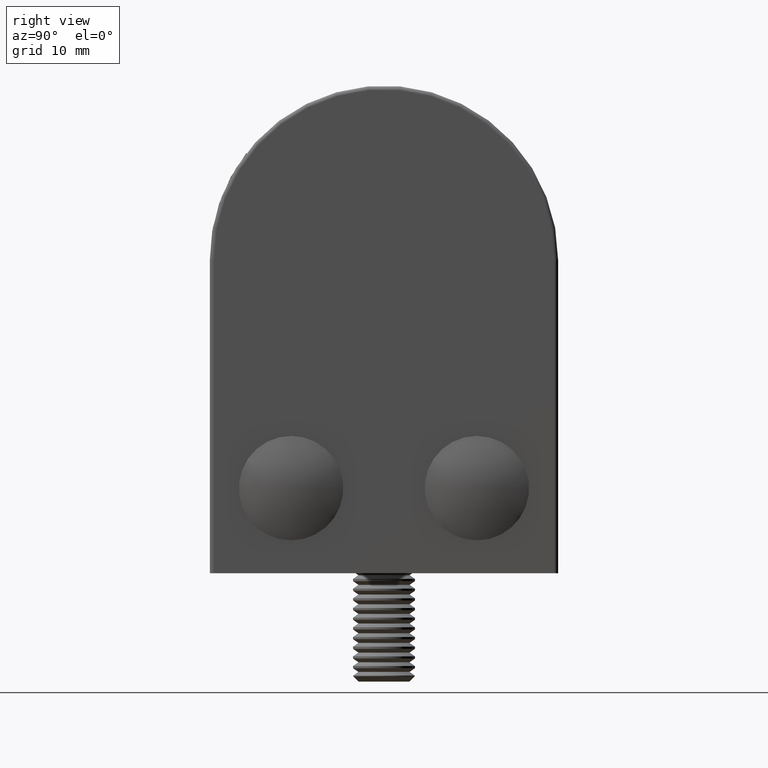
[diagram: clean part render]
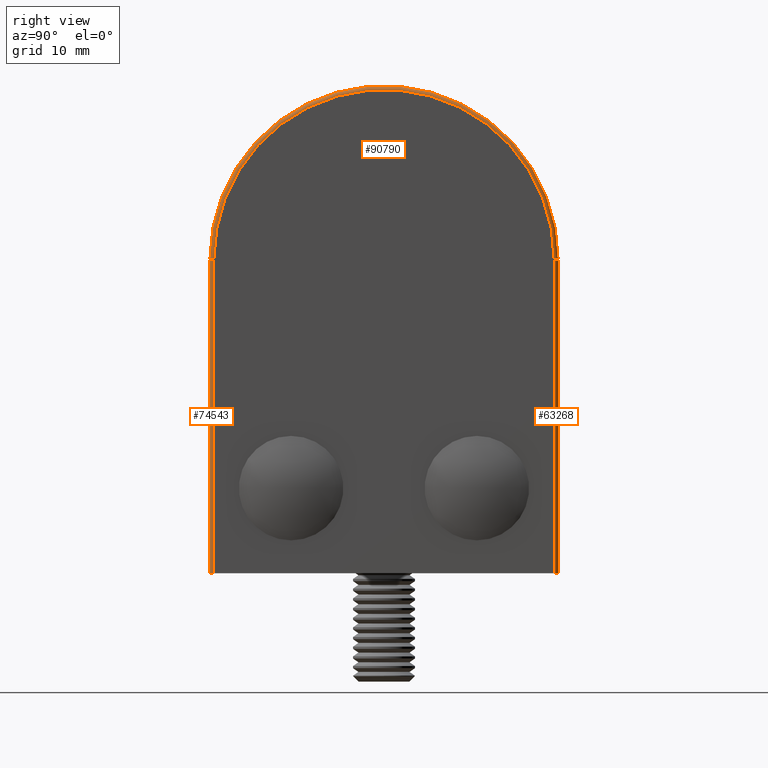
[diagram: same view with one multi-face feature highlighted, each face labeled with its STEP entity id]
A machine part, right view. The highlighted faces form ONE feature: a constant-radius fillet chain: 3 tangent blend faces with common blend radius 0.5 mm. The faces share edges in the B-rep.
Their STEP definitions:
[1] entity #90790 (Torus):
#5757 = CARTESIAN_POINT ( 'NONE',  ( 0.5000000000000004441, -22.50000000000001776, 40.50000000000000000 ) ) ;
#7394 = ORIENTED_EDGE ( 'NONE', *, *, #79811, .F. ) ;
#9201 = CIRCLE ( 'NONE', #23275, 0.5000000000000000000 ) ;
#10535 = CIRCLE ( 'NONE', #36328, 0.5000000000000000000 ) ;
#10913 = AXIS2_PLACEMENT_3D ( 'NONE', #41236, #55755, #13427 ) ;
#13427 = DIRECTION ( 'NONE',  ( 0.000000000000000000, 8.881784197001252323E-16, -1.000000000000000000 ) ) ;
#19436 = DIRECTION ( 'NONE',  ( 1.000000000000000000, 0.000000000000000000, 0.000000000000000000 ) ) ;
#19964 = DIRECTION ( 'NONE',  ( -1.000000000000000000, 0.000000000000000000, 0.000000000000000000 ) ) ;
#23275 = AXIS2_PLACEMENT_3D ( 'NONE', #75758, #47726, #19964 ) ;
#23908 = VERTEX_POINT ( 'NONE', #86490 ) ;
#26776 = FACE_OUTER_BOUND ( 'NONE', #68170, .T. ) ;
#31458 = CIRCLE ( 'NONE', #61299, 22.50000000000000355 ) ;
#33171 = EDGE_CURVE ( 'NONE', #62609, #70749, #31458, .T. ) ;
#33319 = DIRECTION ( 'NONE',  ( 0.000000000000000000, 0.000000000000000000, -1.000000000000000000 ) ) ;
#34801 = CIRCLE ( 'NONE', #10913, 22.00000000000000355 ) ;
#36328 = AXIS2_PLACEMENT_3D ( 'NONE', #73445, #65777, #79923 ) ;
#39785 = ORIENTED_EDGE ( 'NONE', *, *, #45462, .T. ) ;
#41236 = CARTESIAN_POINT ( 'NONE',  ( 0.000000000000000000, -1.387778780781445676E-14, 40.49999999999999289 ) ) ;
#45462 = EDGE_CURVE ( 'NONE', #72926, #70749, #10535, .T. ) ;
#45551 = TOROIDAL_SURFACE ( 'NONE', #49636, 22.00000000000000355, 0.5000000000000000000 ) ;
#46258 = CARTESIAN_POINT ( 'NONE',  ( 0.5000000000000004441, 22.50000000000000711, 40.49999999999999289 ) ) ;
#47726 = DIRECTION ( 'NONE',  ( 0.000000000000000000, 0.000000000000000000, -1.000000000000000000 ) ) ;
#49636 = AXIS2_PLACEMENT_3D ( 'NONE', #57970, #51169, #65082 ) ;
#51169 = DIRECTION ( 'NONE',  ( 1.000000000000000000, 0.000000000000000000, 0.000000000000000000 ) ) ;
#55755 = DIRECTION ( 'NONE',  ( -1.000000000000000000, -0.000000000000000000, -0.000000000000000000 ) ) ;
#57970 = CARTESIAN_POINT ( 'NONE',  ( 0.5000000000000004441, -1.387778780781445676E-14, 40.49999999999999289 ) ) ;
#59873 = CARTESIAN_POINT ( 'NONE',  ( 0.5000000000000004441, -1.387778780781445676E-14, 40.49999999999999289 ) ) ;
#61299 = AXIS2_PLACEMENT_3D ( 'NONE', #59873, #19436, #33319 ) ;
#62609 = VERTEX_POINT ( 'NONE', #46258 ) ;
#64372 = EDGE_CURVE ( 'NONE', #72926, #23908, #34801, .T. ) ;
#65082 = DIRECTION ( 'NONE',  ( 0.000000000000000000, 0.000000000000000000, -1.000000000000000000 ) ) ;
#65777 = DIRECTION ( 'NONE',  ( 0.000000000000000000, 0.000000000000000000, 1.000000000000000000 ) ) ;
#68170 = EDGE_LOOP ( 'NONE', ( #39785, #83323, #7394, #91188 ) ) ;
#70749 = VERTEX_POINT ( 'NONE', #5757 ) ;
#72132 = CARTESIAN_POINT ( 'NONE',  ( 0.000000000000000000, -22.00000000000001776, 40.50000000000000000 ) ) ;
#72926 = VERTEX_POINT ( 'NONE', #72132 ) ;
#73445 = CARTESIAN_POINT ( 'NONE',  ( 0.5000000000000000000, -22.00000000000000000, 40.50000000000000000 ) ) ;
#75758 = CARTESIAN_POINT ( 'NONE',  ( 0.5000000000000000000, 21.99999999999998934, 40.49999999999999289 ) ) ;
#79811 = EDGE_CURVE ( 'NONE', #23908, #62609, #9201, .T. ) ;
#79923 = DIRECTION ( 'NONE',  ( 1.000000000000000000, 0.000000000000000000, 0.000000000000000000 ) ) ;
#83323 = ORIENTED_EDGE ( 'NONE', *, *, #33171, .F. ) ;
#86490 = CARTESIAN_POINT ( 'NONE',  ( 0.000000000000000000, 21.99999999999998934, 40.49999999999999289 ) ) ;
#90790 = ADVANCED_FACE ( 'NONE', ( #26776 ), #45551, .T. ) ;
#91188 = ORIENTED_EDGE ( 'NONE', *, *, #64372, .F. ) ;
[2] entity #74543 (Cylinder):
#1041 = CARTESIAN_POINT ( 'NONE',  ( 0.000000000000000000, 22.00000000000000711, 40.49999999999998579 ) ) ;
#1247 = EDGE_CURVE ( 'NONE', #17916, #28518, #64504, .T. ) ;
#1683 = DIRECTION ( 'NONE',  ( 1.000000000000000000, 0.000000000000000000, 0.000000000000000000 ) ) ;
#3560 = ORIENTED_EDGE ( 'NONE', *, *, #21546, .F. ) ;
#9201 = CIRCLE ( 'NONE', #23275, 0.5000000000000000000 ) ;
#10116 = CARTESIAN_POINT ( 'NONE',  ( 0.000000000000000000, 21.99999999999998579, 0.000000000000000000 ) ) ;
#17324 = ORIENTED_EDGE ( 'NONE', *, *, #79811, .T. ) ;
#17916 = VERTEX_POINT ( 'NONE', #10116 ) ;
#19964 = DIRECTION ( 'NONE',  ( -1.000000000000000000, 0.000000000000000000, 0.000000000000000000 ) ) ;
#21546 = EDGE_CURVE ( 'NONE', #23908, #17916, #59031, .T. ) ;
#23275 = AXIS2_PLACEMENT_3D ( 'NONE', #75758, #47726, #19964 ) ;
#23908 = VERTEX_POINT ( 'NONE', #86490 ) ;
#28518 = VERTEX_POINT ( 'NONE', #41632 ) ;
#28980 = AXIS2_PLACEMENT_3D ( 'NONE', #72403, #37301, #1683 ) ;
#31258 = VECTOR ( 'NONE', #65288, 1000.000000000000000 ) ;
#33549 = LINE ( 'NONE', #73696, #47887 ) ;
#37301 = DIRECTION ( 'NONE',  ( -0.000000000000000000, -0.000000000000000000, -1.000000000000000000 ) ) ;
#41632 = CARTESIAN_POINT ( 'NONE',  ( 0.5000000000000004441, 22.50000000000000000, 0.000000000000000000 ) ) ;
#45634 = DIRECTION ( 'NONE',  ( -0.000000000000000000, 1.713307136767217096E-16, 1.000000000000000000 ) ) ;
#46258 = CARTESIAN_POINT ( 'NONE',  ( 0.5000000000000004441, 22.50000000000000711, 40.49999999999999289 ) ) ;
#47726 = DIRECTION ( 'NONE',  ( 0.000000000000000000, 0.000000000000000000, -1.000000000000000000 ) ) ;
#47887 = VECTOR ( 'NONE', #45634, 1000.000000000000000 ) ;
#48695 = DIRECTION ( 'NONE',  ( -0.000000000000000000, 1.713307136767217096E-16, 1.000000000000000000 ) ) ;
#49764 = AXIS2_PLACEMENT_3D ( 'NONE', #91214, #48695, #61945 ) ;
#52732 = EDGE_LOOP ( 'NONE', ( #87575, #3560, #17324, #88352 ) ) ;
#58599 = EDGE_CURVE ( 'NONE', #28518, #62609, #33549, .T. ) ;
#59031 = LINE ( 'NONE', #1041, #31258 ) ;
#61945 = DIRECTION ( 'NONE',  ( 0.000000000000000000, -1.000000000000000000, 1.713307136767215617E-16 ) ) ;
#62609 = VERTEX_POINT ( 'NONE', #46258 ) ;
#64504 = CIRCLE ( 'NONE', #28980, 0.5000000000000000000 ) ;
#65288 = DIRECTION ( 'NONE',  ( 0.000000000000000000, -1.713307136767217096E-16, -1.000000000000000000 ) ) ;
#72403 = CARTESIAN_POINT ( 'NONE',  ( 0.5000000000000004441, 22.00000000000000000, 0.000000000000000000 ) ) ;
#73696 = CARTESIAN_POINT ( 'NONE',  ( 0.5000000000000004441, 22.50000000000000000, 0.000000000000000000 ) ) ;
#74543 = ADVANCED_FACE ( 'NONE', ( #78635 ), #84138, .T. ) ;
#75758 = CARTESIAN_POINT ( 'NONE',  ( 0.5000000000000000000, 21.99999999999998934, 40.49999999999999289 ) ) ;
#78635 = FACE_OUTER_BOUND ( 'NONE', #52732, .T. ) ;
#79811 = EDGE_CURVE ( 'NONE', #23908, #62609, #9201, .T. ) ;
#84138 = CYLINDRICAL_SURFACE ( 'NONE', #49764, 0.5000000000000004441 ) ;
#86490 = CARTESIAN_POINT ( 'NONE',  ( 0.000000000000000000, 21.99999999999998934, 40.49999999999999289 ) ) ;
#87575 = ORIENTED_EDGE ( 'NONE', *, *, #1247, .F. ) ;
#88352 = ORIENTED_EDGE ( 'NONE', *, *, #58599, .F. ) ;
#91214 = CARTESIAN_POINT ( 'NONE',  ( 0.5000000000000004441, 22.00000000000000000, 8.566535683836085482E-17 ) ) ;
[3] entity #63268 (Cylinder):
#5572 = VECTOR ( 'NONE', #19907, 1000.000000000000000 ) ;
#5757 = CARTESIAN_POINT ( 'NONE',  ( 0.5000000000000004441, -22.50000000000001776, 40.50000000000000000 ) ) ;
#10535 = CIRCLE ( 'NONE', #36328, 0.5000000000000000000 ) ;
#11083 = DIRECTION ( 'NONE',  ( 1.000000000000000000, 0.000000000000000000, 0.000000000000000000 ) ) ;
#13878 = AXIS2_PLACEMENT_3D ( 'NONE', #26774, #41923, #76371 ) ;
#17038 = CIRCLE ( 'NONE', #68020, 0.5000000000000000000 ) ;
#19513 = VECTOR ( 'NONE', #77390, 1000.000000000000000 ) ;
#19907 = DIRECTION ( 'NONE',  ( -0.000000000000000000, -0.000000000000000000, 1.000000000000000000 ) ) ;
#24455 = LINE ( 'NONE', #61267, #5572 ) ;
#26186 = LINE ( 'NONE', #26592, #19513 ) ;
#26592 = CARTESIAN_POINT ( 'NONE',  ( 0.5000000000000004441, -22.50000000000000000, 0.000000000000000000 ) ) ;
#26774 = CARTESIAN_POINT ( 'NONE',  ( 0.5000000000000004441, -22.00000000000000000, 0.000000000000000000 ) ) ;
#27491 = EDGE_LOOP ( 'NONE', ( #54855, #52688, #57127, #91033 ) ) ;
#28923 = EDGE_CURVE ( 'NONE', #87756, #72926, #24455, .T. ) ;
#36328 = AXIS2_PLACEMENT_3D ( 'NONE', #73445, #65777, #79923 ) ;
#39100 = EDGE_CURVE ( 'NONE', #50424, #87756, #17038, .T. ) ;
#41923 = DIRECTION ( 'NONE',  ( 0.000000000000000000, 0.000000000000000000, -1.000000000000000000 ) ) ;
#45462 = EDGE_CURVE ( 'NONE', #72926, #70749, #10535, .T. ) ;
#50424 = VERTEX_POINT ( 'NONE', #62358 ) ;
#52688 = ORIENTED_EDGE ( 'NONE', *, *, #85870, .F. ) ;
#54855 = ORIENTED_EDGE ( 'NONE', *, *, #39100, .F. ) ;
#57127 = ORIENTED_EDGE ( 'NONE', *, *, #45462, .F. ) ;
#61267 = CARTESIAN_POINT ( 'NONE',  ( 0.000000000000000000, -22.00000000000000000, 40.49999999999999289 ) ) ;
#61468 = FACE_OUTER_BOUND ( 'NONE', #27491, .T. ) ;
#61740 = CARTESIAN_POINT ( 'NONE',  ( 0.5000000000000004441, -22.00000000000000000, 0.000000000000000000 ) ) ;
#62358 = CARTESIAN_POINT ( 'NONE',  ( 0.5000000000000004441, -22.50000000000000000, 0.000000000000000000 ) ) ;
#63268 = ADVANCED_FACE ( 'NONE', ( #61468 ), #86819, .T. ) ;
#65777 = DIRECTION ( 'NONE',  ( 0.000000000000000000, 0.000000000000000000, 1.000000000000000000 ) ) ;
#68020 = AXIS2_PLACEMENT_3D ( 'NONE', #61740, #82019, #11083 ) ;
#70749 = VERTEX_POINT ( 'NONE', #5757 ) ;
#72132 = CARTESIAN_POINT ( 'NONE',  ( 0.000000000000000000, -22.00000000000001776, 40.50000000000000000 ) ) ;
#72926 = VERTEX_POINT ( 'NONE', #72132 ) ;
#73360 = CARTESIAN_POINT ( 'NONE',  ( 0.000000000000000000, -22.00000000000000000, 0.000000000000000000 ) ) ;
#73445 = CARTESIAN_POINT ( 'NONE',  ( 0.5000000000000000000, -22.00000000000000000, 40.50000000000000000 ) ) ;
#76371 = DIRECTION ( 'NONE',  ( -1.000000000000000000, 0.000000000000000000, 0.000000000000000000 ) ) ;
#77390 = DIRECTION ( 'NONE',  ( 0.000000000000000000, 0.000000000000000000, -1.000000000000000000 ) ) ;
#79923 = DIRECTION ( 'NONE',  ( 1.000000000000000000, 0.000000000000000000, 0.000000000000000000 ) ) ;
#82019 = DIRECTION ( 'NONE',  ( -0.000000000000000000, -0.000000000000000000, -1.000000000000000000 ) ) ;
#85870 = EDGE_CURVE ( 'NONE', #70749, #50424, #26186, .T. ) ;
#86819 = CYLINDRICAL_SURFACE ( 'NONE', #13878, 0.5000000000000000000 ) ;
#87756 = VERTEX_POINT ( 'NONE', #73360 ) ;
#91033 = ORIENTED_EDGE ( 'NONE', *, *, #28923, .F. ) ;